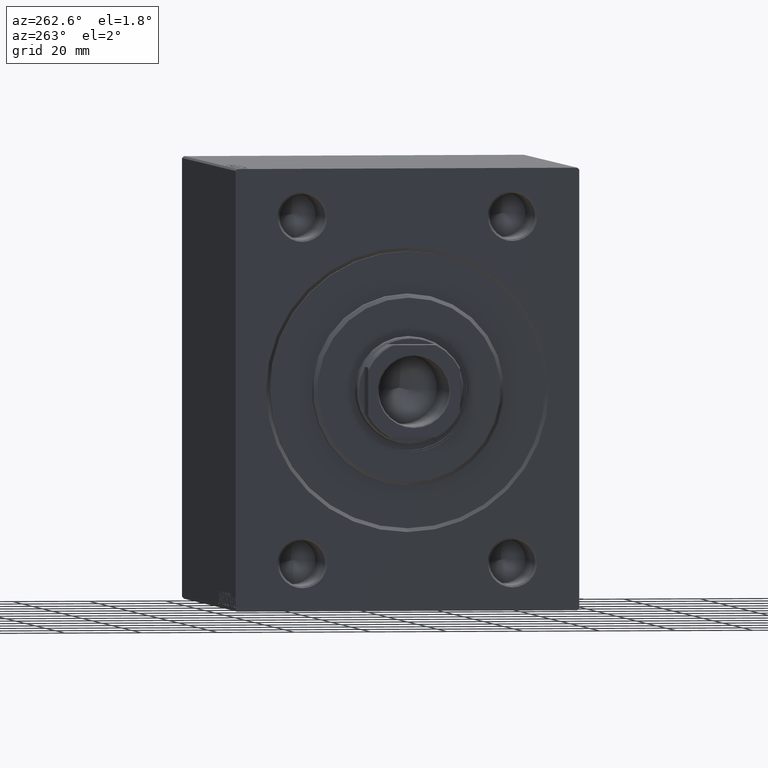
[diagram: clean part render]
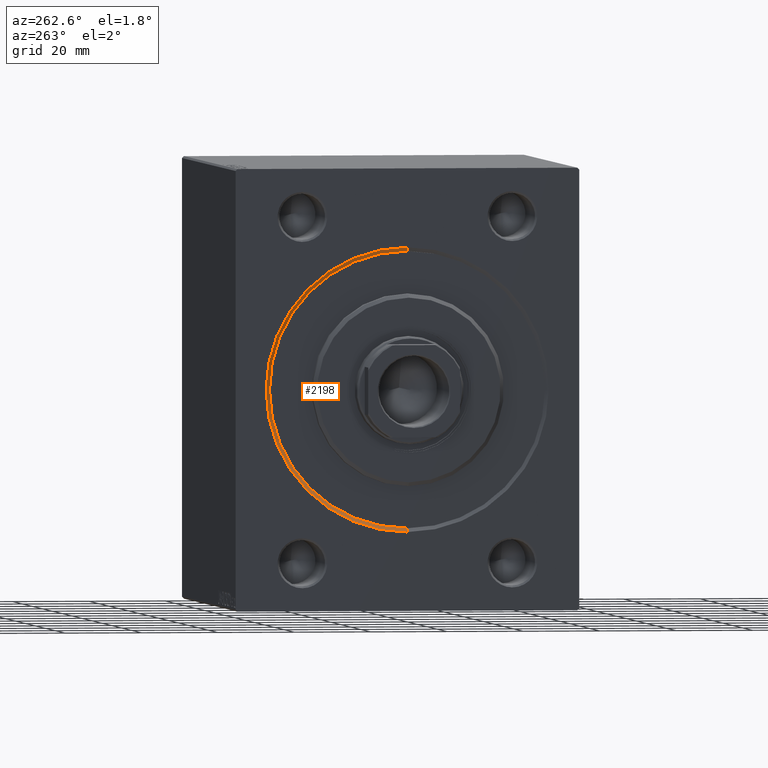
[diagram: same view with one face highlighted and labeled with its STEP entity id]
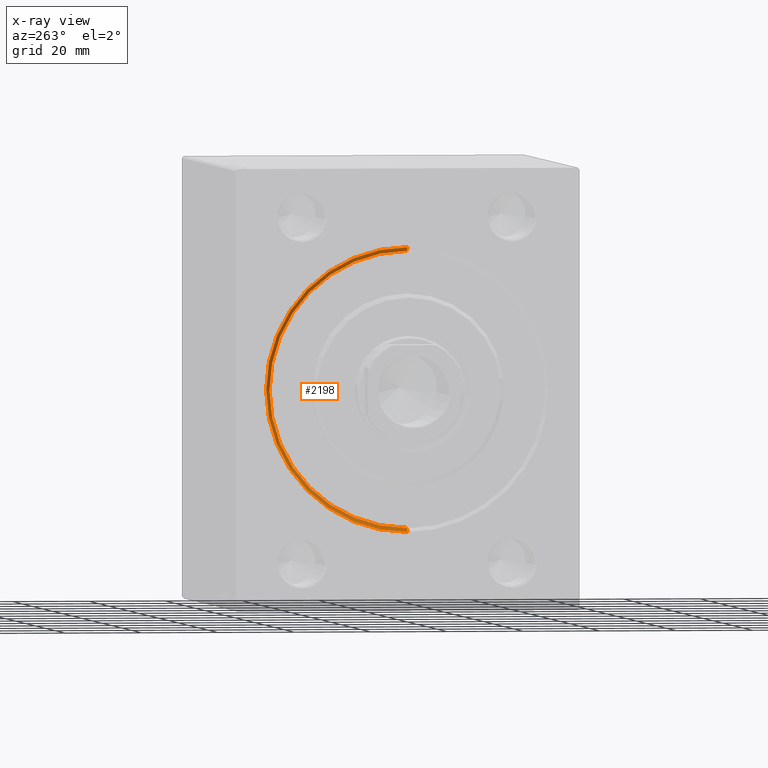
[diagram: x-ray of the same camera — body ghosted, the highlighted face saturated]
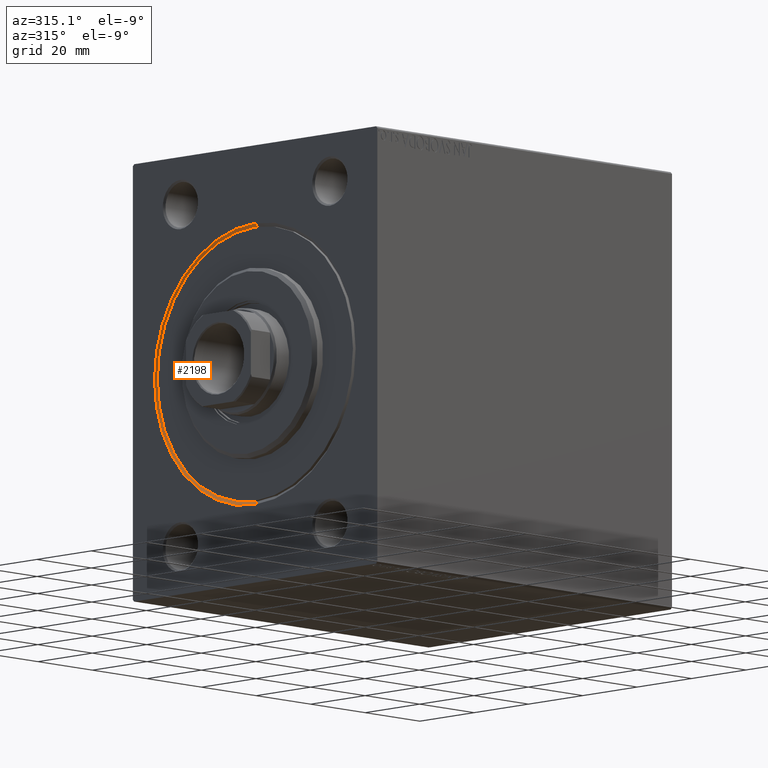
[diagram: same view with one face highlighted and labeled with its STEP entity id]
A machine part, auxiliary view. The second image highlights one B-rep face of the part: STEP entity #2198.
The next image is the same camera in x-ray: the body ghosted, the highlighted face saturated — about 0% of this face is hidden behind the body in this view.
A second angle (auxiliary view) of the same face is appended — the face is thin or edge-on in the first view.
In plain terms, the highlighted conical surface has half-angle 45 deg.
Its self-contained STEP definition (entity closure, byte-faithful):
#2145 = VERTEX_POINT ( 'NONE', #11348 ) ;
#2198 = ADVANCED_FACE ( 'NONE', ( #32993 ), #43575, .F. ) ;
#4008 = EDGE_CURVE ( 'NONE', #16640, #6608, #42323, .T. ) ;
#4481 = ORIENTED_EDGE ( 'NONE', *, *, #39288, .T. ) ;
#6608 = VERTEX_POINT ( 'NONE', #31302 ) ;
#6623 = CIRCLE ( 'NONE', #22333, 36.00000000000000000 ) ;
#7257 = VECTOR ( 'NONE', #32247, 999.9999999999998863 ) ;
#8696 = DIRECTION ( 'NONE',  ( 1.000000000000000000, 0.000000000000000000, 0.000000000000000000 ) ) ;
#11348 = CARTESIAN_POINT ( 'NONE',  ( 0.9999999999999940048, 0.000000000000000000, 36.00000000000000000 ) ) ;
#12273 = DIRECTION ( 'NONE',  ( 0.000000000000000000, 0.000000000000000000, -1.000000000000000000 ) ) ;
#12339 = CARTESIAN_POINT ( 'NONE',  ( 0.9999999999999940048, 0.000000000000000000, 36.00000000000000000 ) ) ;
#16108 = DIRECTION ( 'NONE',  ( -0.7071067811865425767, 0.000000000000000000, 0.7071067811865525687 ) ) ;
#16640 = VERTEX_POINT ( 'NONE', #43654 ) ;
#20365 = ORIENTED_EDGE ( 'NONE', *, *, #4008, .F. ) ;
#21501 = AXIS2_PLACEMENT_3D ( 'NONE', #29637, #43275, #32553 ) ;
#21891 = CARTESIAN_POINT ( 'NONE',  ( 0.000000000000000000, 0.000000000000000000, 0.000000000000000000 ) ) ;
#22333 = AXIS2_PLACEMENT_3D ( 'NONE', #32653, #43366, #29301 ) ;
#22751 = CIRCLE ( 'NONE', #23462, 37.00000000000000711 ) ;
#23462 = AXIS2_PLACEMENT_3D ( 'NONE', #21891, #8696, #12273 ) ;
#23567 = EDGE_CURVE ( 'NONE', #6608, #41851, #22751, .T. ) ;
#23887 = EDGE_LOOP ( 'NONE', ( #20365, #40623, #4481, #30604 ) ) ;
#24661 = CARTESIAN_POINT ( 'NONE',  ( 0.9999999999999940048, 4.408728476930470856E-15, -36.00000000000000000 ) ) ;
#29301 = DIRECTION ( 'NONE',  ( 0.000000000000000000, 0.000000000000000000, -1.000000000000000000 ) ) ;
#29637 = CARTESIAN_POINT ( 'NONE',  ( 0.9999999999999940048, 0.000000000000000000, 0.000000000000000000 ) ) ;
#30604 = ORIENTED_EDGE ( 'NONE', *, *, #23567, .F. ) ;
#31302 = CARTESIAN_POINT ( 'NONE',  ( 0.000000000000000000, 4.531193156845207581E-15, -37.00000000000000711 ) ) ;
#32247 = DIRECTION ( 'NONE',  ( -0.7071067811865425767, 8.659560562354994488E-17, -0.7071067811865525687 ) ) ;
#32553 = DIRECTION ( 'NONE',  ( 0.000000000000000000, 0.000000000000000000, 1.000000000000000000 ) ) ;
#32653 = CARTESIAN_POINT ( 'NONE',  ( 0.9999999999999940048, 0.000000000000000000, 0.000000000000000000 ) ) ;
#32993 = FACE_OUTER_BOUND ( 'NONE', #23887, .T. ) ;
#39288 = EDGE_CURVE ( 'NONE', #2145, #41851, #39571, .T. ) ;
#39381 = EDGE_CURVE ( 'NONE', #2145, #16640, #6623, .T. ) ;
#39571 = LINE ( 'NONE', #12339, #40842 ) ;
#40623 = ORIENTED_EDGE ( 'NONE', *, *, #39381, .F. ) ;
#40842 = VECTOR ( 'NONE', #16108, 999.9999999999998863 ) ;
#41851 = VERTEX_POINT ( 'NONE', #43449 ) ;
#42323 = LINE ( 'NONE', #24661, #7257 ) ;
#43275 = DIRECTION ( 'NONE',  ( -1.000000000000000000, 0.000000000000000000, 0.000000000000000000 ) ) ;
#43366 = DIRECTION ( 'NONE',  ( -1.000000000000000000, 0.000000000000000000, 0.000000000000000000 ) ) ;
#43449 = CARTESIAN_POINT ( 'NONE',  ( 0.000000000000000000, 0.000000000000000000, 37.00000000000000711 ) ) ;
#43575 = CONICAL_SURFACE ( 'NONE', #21501, 36.00000000000000000, 0.7853981633974552734 ) ;
#43654 = CARTESIAN_POINT ( 'NONE',  ( 0.9999999999999940048, 4.408728476930470856E-15, -36.00000000000000000 ) ) ;